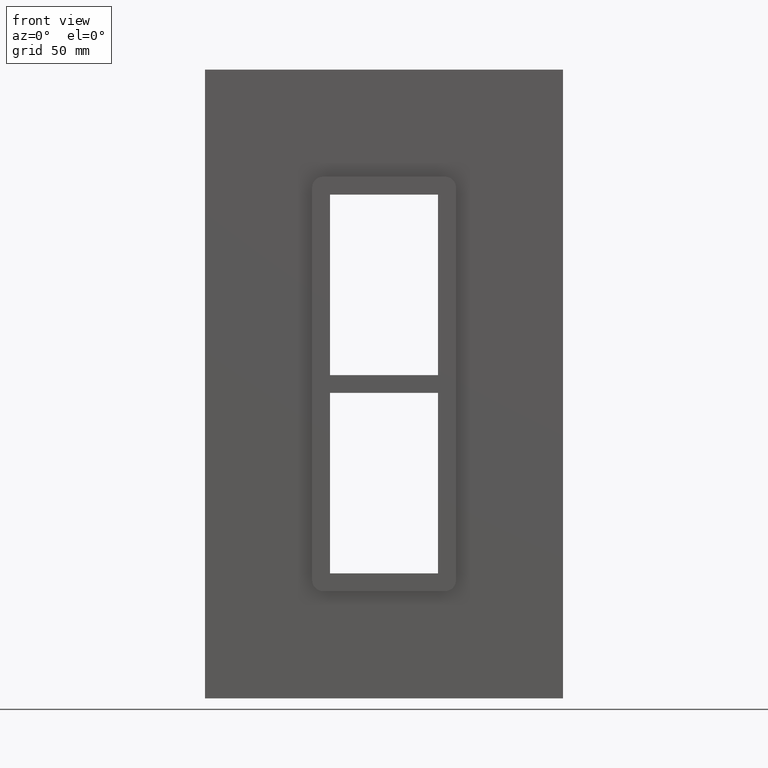
[diagram: clean part render]
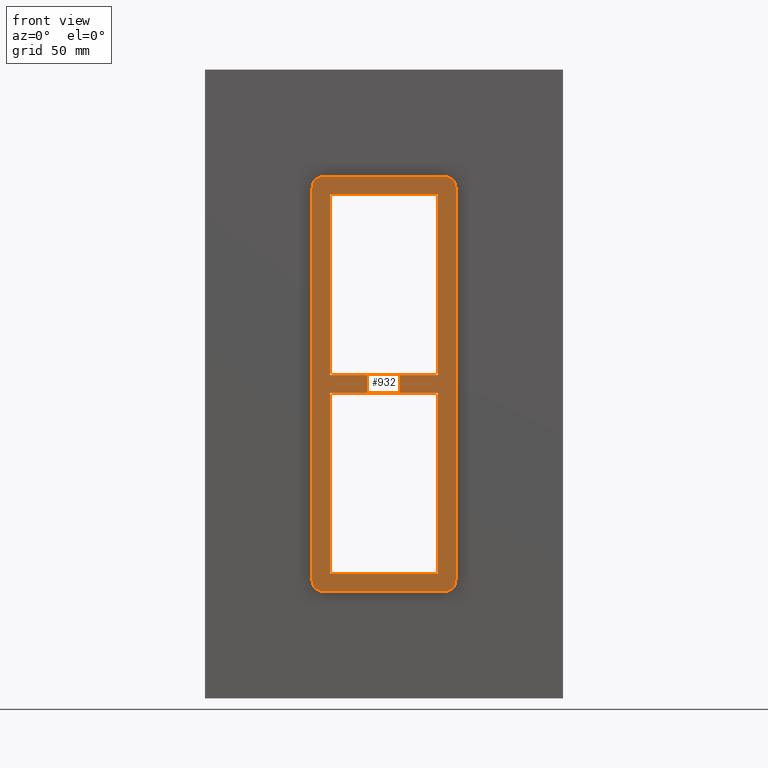
[diagram: same view with one face highlighted and labeled with its STEP entity id]
A machine part, front view. The second image highlights one B-rep face of the part: STEP entity #932.
In plain terms, the highlighted planar face has unit normal (0, 1, 0).
Its self-contained STEP definition (entity closure, byte-faithful):
#73=CARTESIAN_POINT('',(30.249999999999986,-5.0,-5.0));
#74=VERTEX_POINT('',#73);
#75=CARTESIAN_POINT('',(-30.250000000002281,-5.0,-5.0));
#76=VERTEX_POINT('',#75);
#77=CARTESIAN_POINT('',(30.249999999999986,-5.0,-5.0));
#78=DIRECTION('',(-1.0,0.0,0.0));
#79=VECTOR('',#78,60.50000000000226);
#80=LINE('',#77,#79);
#81=EDGE_CURVE('',#74,#76,#80,.T.);
#113=CARTESIAN_POINT('',(-30.250000000000004,-5.0,5.000000000000018));
#114=VERTEX_POINT('',#113);
#115=CARTESIAN_POINT('',(30.250000000000714,-5.0,5.0));
#116=VERTEX_POINT('',#115);
#117=CARTESIAN_POINT('',(-30.250000000000004,-5.0,5.000000000000018));
#118=DIRECTION('',(1.0,0.0,0.0));
#119=VECTOR('',#118,60.500000000000718);
#120=LINE('',#117,#119);
#121=EDGE_CURVE('',#114,#116,#120,.T.);
#162=CARTESIAN_POINT('',(-30.250000000000004,-5.0,106.00000000000001));
#163=VERTEX_POINT('',#162);
#170=CARTESIAN_POINT('',(-30.250000000000004,-5.0,5.000000000000021));
#171=DIRECTION('',(0.0,0.0,1.0));
#172=VECTOR('',#171,101.0);
#173=LINE('',#170,#172);
#174=EDGE_CURVE('',#114,#163,#173,.T.);
#193=CARTESIAN_POINT('',(30.249999999999986,-5.0,-106.00000000000001));
#194=VERTEX_POINT('',#193);
#201=CARTESIAN_POINT('',(30.249999999999986,-5.0,-5.0));
#202=DIRECTION('',(0.0,0.0,-1.0));
#203=VECTOR('',#202,101.00000000000003);
#204=LINE('',#201,#203);
#205=EDGE_CURVE('',#74,#194,#204,.T.);
#216=CARTESIAN_POINT('',(30.249999999999986,-5.0,106.00000000000001));
#217=VERTEX_POINT('',#216);
#218=CARTESIAN_POINT('',(30.249999999999986,-5.0,106.00000000000001));
#219=DIRECTION('',(0.0,0.0,-1.0));
#220=VECTOR('',#219,101.00000000000001);
#221=LINE('',#218,#220);
#222=EDGE_CURVE('',#217,#116,#221,.T.);
#535=CARTESIAN_POINT('',(-30.250000000000004,-5.0,-106.00000000000001));
#536=VERTEX_POINT('',#535);
#537=CARTESIAN_POINT('',(-30.250000000000004,-5.0,-106.00000000000001));
#538=DIRECTION('',(0.0,0.0,1.0));
#539=VECTOR('',#538,101.00000000000001);
#540=LINE('',#537,#539);
#541=EDGE_CURVE('',#536,#76,#540,.T.);
#566=CARTESIAN_POINT('',(-34.250000000000028,-5.0,-116.00000000000001));
#567=VERTEX_POINT('',#566);
#574=CARTESIAN_POINT('',(-40.249999999999986,-5.0,-110.0));
#575=VERTEX_POINT('',#574);
#576=CARTESIAN_POINT('',(-34.250000000000007,-5.0,-110.00000000000003));
#577=DIRECTION('',(0.0,-1.0,0.0));
#578=DIRECTION('',(0.0,0.0,-1.0));
#579=AXIS2_PLACEMENT_3D('',#576,#577,#578);
#580=CIRCLE('',#579,6.000000000000014);
#581=EDGE_CURVE('',#575,#567,#580,.T.);
#631=CARTESIAN_POINT('',(-40.249999999999986,-5.0,110.00000000000003));
#632=VERTEX_POINT('',#631);
#633=CARTESIAN_POINT('',(-40.249999999999986,-5.0,110.00000000000003));
#634=DIRECTION('',(0.0,0.0,-1.0));
#635=VECTOR('',#634,220.00000000000003);
#636=LINE('',#633,#635);
#637=EDGE_CURVE('',#632,#575,#636,.T.);
#678=CARTESIAN_POINT('',(34.250000000000007,-5.0,-116.00000000000001));
#679=VERTEX_POINT('',#678);
#686=CARTESIAN_POINT('',(-34.250000000000021,-5.0,-116.00000000000001));
#687=DIRECTION('',(1.0,0.0,0.0));
#688=VECTOR('',#687,68.500000000000028);
#689=LINE('',#686,#688);
#690=EDGE_CURVE('',#567,#679,#689,.T.);
#703=CARTESIAN_POINT('',(-34.250000000000028,-5.0,116.00000000000001));
#704=VERTEX_POINT('',#703);
#705=CARTESIAN_POINT('',(-34.250000000000007,-5.0,110.00000000000003));
#706=DIRECTION('',(0.0,-1.0,0.0));
#707=DIRECTION('',(-1.0,0.0,0.0));
#708=AXIS2_PLACEMENT_3D('',#705,#706,#707);
#709=CIRCLE('',#708,6.000000000000014);
#710=EDGE_CURVE('',#704,#632,#709,.T.);
#752=CARTESIAN_POINT('',(40.249999999999986,-5.0,-110.0));
#753=VERTEX_POINT('',#752);
#760=CARTESIAN_POINT('',(34.250000000000007,-5.0,-110.00000000000003));
#761=DIRECTION('',(0.0,-1.0,0.0));
#762=DIRECTION('',(1.0,0.0,0.0));
#763=AXIS2_PLACEMENT_3D('',#760,#761,#762);
#764=CIRCLE('',#763,6.000000000000014);
#765=EDGE_CURVE('',#679,#753,#764,.T.);
#778=CARTESIAN_POINT('',(34.250000000000028,-5.0,116.00000000000001));
#779=VERTEX_POINT('',#778);
#780=CARTESIAN_POINT('',(34.250000000000028,-5.0,116.00000000000001));
#781=DIRECTION('',(-1.0,0.0,0.0));
#782=VECTOR('',#781,68.500000000000057);
#783=LINE('',#780,#782);
#784=EDGE_CURVE('',#779,#704,#783,.T.);
#825=CARTESIAN_POINT('',(40.249999999999986,-5.0,110.00000000000003));
#826=VERTEX_POINT('',#825);
#833=CARTESIAN_POINT('',(40.249999999999986,-5.0,-110.0));
#834=DIRECTION('',(0.0,0.0,1.0));
#835=VECTOR('',#834,220.00000000000003);
#836=LINE('',#833,#835);
#837=EDGE_CURVE('',#753,#826,#836,.T.);
#850=CARTESIAN_POINT('',(34.250000000000007,-5.0,110.00000000000003));
#851=DIRECTION('',(0.0,-1.0,0.0));
#852=DIRECTION('',(0.0,0.0,1.0));
#853=AXIS2_PLACEMENT_3D('',#850,#851,#852);
#854=CIRCLE('',#853,6.000000000000014);
#855=EDGE_CURVE('',#826,#779,#854,.T.);
#874=CARTESIAN_POINT('',(-30.250000000000004,-5.0,106.00000000000001));
#875=DIRECTION('',(1.0,0.0,0.0));
#876=VECTOR('',#875,60.499999999999986);
#877=LINE('',#874,#876);
#878=EDGE_CURVE('',#163,#217,#877,.T.);
#889=CARTESIAN_POINT('',(30.249999999999986,-5.0,-106.00000000000001));
#890=DIRECTION('',(-1.0,0.0,0.0));
#891=VECTOR('',#890,60.499999999999993);
#892=LINE('',#889,#891);
#893=EDGE_CURVE('',#194,#536,#892,.T.);
#905=CARTESIAN_POINT('',(-1.760878E-015,-5.0,3.301646E-015));
#906=DIRECTION('',(0.0,1.0,0.0));
#907=DIRECTION('',(0.0,0.0,1.0));
#908=AXIS2_PLACEMENT_3D('',#905,#906,#907);
#909=PLANE('',#908);
#910=ORIENTED_EDGE('',*,*,#837,.T.);
#911=ORIENTED_EDGE('',*,*,#855,.T.);
#912=ORIENTED_EDGE('',*,*,#784,.T.);
#913=ORIENTED_EDGE('',*,*,#710,.T.);
#914=ORIENTED_EDGE('',*,*,#637,.T.);
#915=ORIENTED_EDGE('',*,*,#581,.T.);
#916=ORIENTED_EDGE('',*,*,#690,.T.);
#917=ORIENTED_EDGE('',*,*,#765,.T.);
#918=EDGE_LOOP('',(#910,#911,#912,#913,#914,#915,#916,#917));
#919=FACE_OUTER_BOUND('',#918,.T.);
#920=ORIENTED_EDGE('',*,*,#174,.T.);
#921=ORIENTED_EDGE('',*,*,#878,.T.);
#922=ORIENTED_EDGE('',*,*,#222,.T.);
#923=ORIENTED_EDGE('',*,*,#121,.F.);
#924=EDGE_LOOP('',(#920,#921,#922,#923));
#925=FACE_BOUND('',#924,.T.);
#926=ORIENTED_EDGE('',*,*,#81,.F.);
#927=ORIENTED_EDGE('',*,*,#205,.T.);
#928=ORIENTED_EDGE('',*,*,#893,.T.);
#929=ORIENTED_EDGE('',*,*,#541,.T.);
#930=EDGE_LOOP('',(#926,#927,#928,#929));
#931=FACE_BOUND('',#930,.T.);
#932=ADVANCED_FACE('',(#919,#925,#931),#909,.F.);